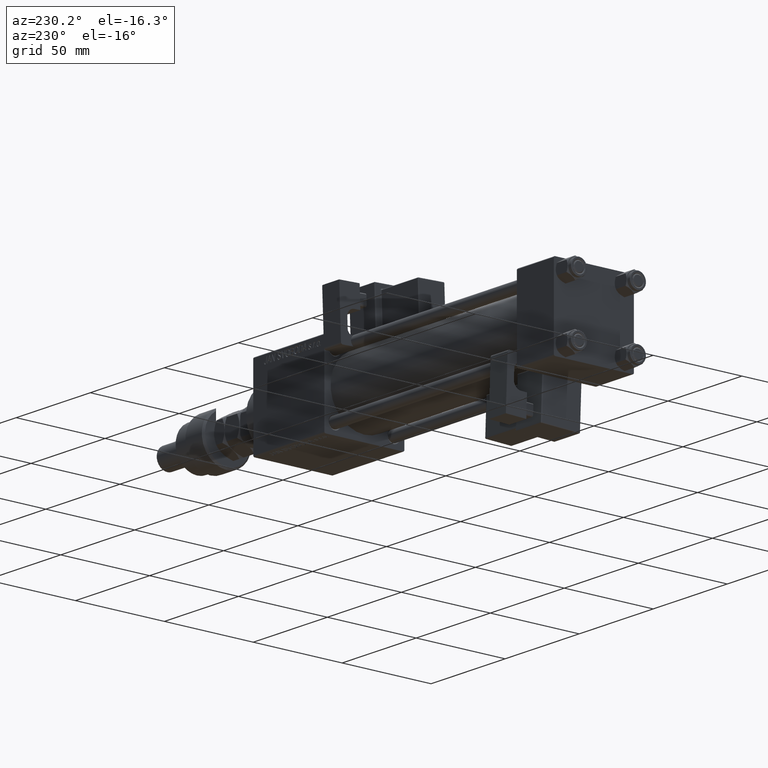
[diagram: clean part render]
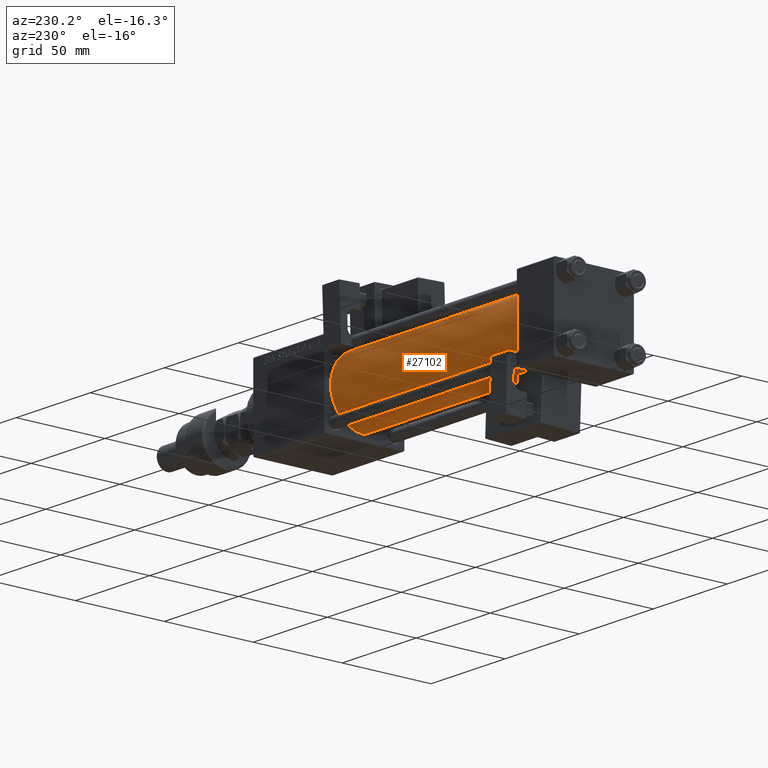
[diagram: same view with one face highlighted and labeled with its STEP entity id]
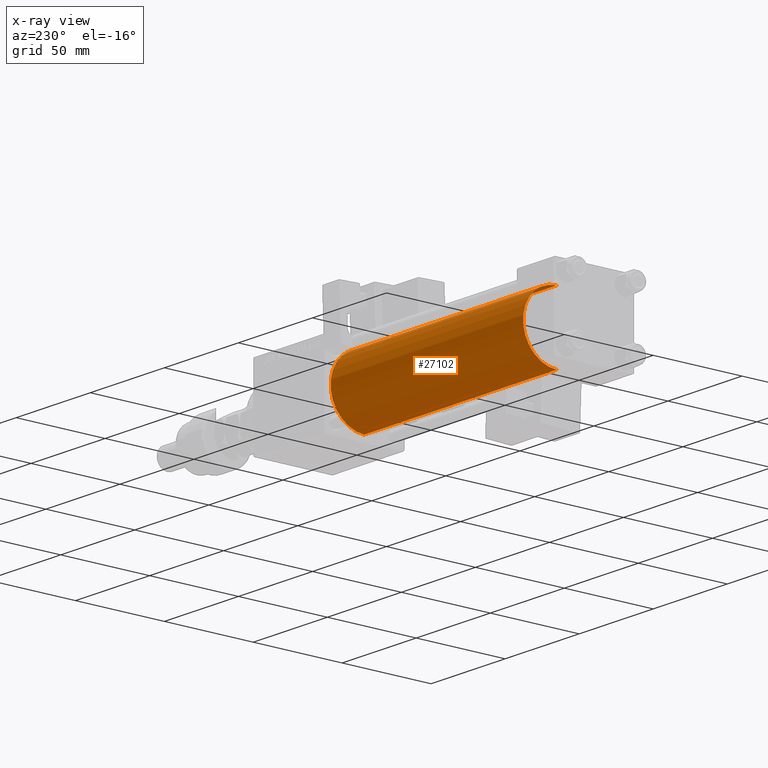
[diagram: x-ray of the same camera — body ghosted, the highlighted face saturated]
A machine part, auxiliary view. The second image highlights one B-rep face of the part: STEP entity #27102.
The next image is the same camera in x-ray: the body ghosted, the highlighted face saturated — about 0% of this face is hidden behind the body in this view.
In plain terms, the highlighted cylindrical surface (partial cylindrical patch) has radius 19 mm, axis along (-1, -0, -0).
Its self-contained STEP definition (entity closure, byte-faithful):
#1292 = AXIS2_PLACEMENT_3D ( 'NONE', #20231, #37016, #42064 ) ;
#1462 = CARTESIAN_POINT ( 'NONE',  ( 24.99999999999999289, -2.752562955852396712E-16, -19.00000000000000000 ) ) ;
#3622 = VERTEX_POINT ( 'NONE', #18823 ) ;
#4550 = EDGE_CURVE ( 'NONE', #3622, #45296, #43514, .T. ) ;
#4611 = AXIS2_PLACEMENT_3D ( 'NONE', #51790, #17618, #46761 ) ;
#6008 = CARTESIAN_POINT ( 'NONE',  ( 155.0000000000000000, -2.602085213965210642E-15, 19.00000000000000000 ) ) ;
#6885 = DIRECTION ( 'NONE',  ( 0.000000000000000000, 0.000000000000000000, 1.000000000000000000 ) ) ;
#8890 = VERTEX_POINT ( 'NONE', #6008 ) ;
#9734 = VECTOR ( 'NONE', #16925, 1000.000000000000000 ) ;
#10258 = EDGE_CURVE ( 'NONE', #3622, #8890, #34401, .T. ) ;
#11216 = ORIENTED_EDGE ( 'NONE', *, *, #16297, .T. ) ;
#12999 = ORIENTED_EDGE ( 'NONE', *, *, #10258, .F. ) ;
#13272 = CARTESIAN_POINT ( 'NONE',  ( 155.0000000000000000, -2.752562955852396712E-16, -19.00000000000000000 ) ) ;
#16297 = EDGE_CURVE ( 'NONE', #45296, #41250, #53475, .T. ) ;
#16925 = DIRECTION ( 'NONE',  ( -1.000000000000000000, -0.000000000000000000, -0.000000000000000000 ) ) ;
#17618 = DIRECTION ( 'NONE',  ( -1.000000000000000000, -0.000000000000000000, -0.000000000000000000 ) ) ;
#18297 = CARTESIAN_POINT ( 'NONE',  ( 24.99999999999999289, -2.602085213965210642E-15, 19.00000000000000000 ) ) ;
#18823 = CARTESIAN_POINT ( 'NONE',  ( 155.0000000000000000, -2.752562955852396712E-16, -19.00000000000000000 ) ) ;
#19516 = DIRECTION ( 'NONE',  ( 1.000000000000000000, -0.000000000000000000, 0.000000000000000000 ) ) ;
#20231 = CARTESIAN_POINT ( 'NONE',  ( 155.0000000000000000, -2.602085213965210642E-15, 0.000000000000000000 ) ) ;
#21833 = CYLINDRICAL_SURFACE ( 'NONE', #4611, 19.00000000000000000 ) ;
#26341 = EDGE_CURVE ( 'NONE', #8890, #41250, #36540, .T. ) ;
#27102 = ADVANCED_FACE ( 'NONE', ( #47855 ), #21833, .T. ) ;
#27228 = ORIENTED_EDGE ( 'NONE', *, *, #26341, .F. ) ;
#27594 = CARTESIAN_POINT ( 'NONE',  ( 155.0000000000000000, -2.602085213965210642E-15, 19.00000000000000000 ) ) ;
#28412 = DIRECTION ( 'NONE',  ( -1.000000000000000000, -0.000000000000000000, -0.000000000000000000 ) ) ;
#28464 = ORIENTED_EDGE ( 'NONE', *, *, #4550, .T. ) ;
#33156 = VECTOR ( 'NONE', #28412, 1000.000000000000000 ) ;
#33807 = AXIS2_PLACEMENT_3D ( 'NONE', #44725, #19516, #6885 ) ;
#34095 = EDGE_LOOP ( 'NONE', ( #12999, #28464, #11216, #27228 ) ) ;
#34401 = CIRCLE ( 'NONE', #1292, 19.00000000000000000 ) ;
#36540 = LINE ( 'NONE', #27594, #33156 ) ;
#37016 = DIRECTION ( 'NONE',  ( 1.000000000000000000, 0.000000000000000000, 0.000000000000000000 ) ) ;
#41250 = VERTEX_POINT ( 'NONE', #18297 ) ;
#42064 = DIRECTION ( 'NONE',  ( 0.000000000000000000, 0.000000000000000000, -1.000000000000000000 ) ) ;
#43514 = LINE ( 'NONE', #13272, #9734 ) ;
#44725 = CARTESIAN_POINT ( 'NONE',  ( 24.99999999999999289, -2.602085213965210642E-15, 0.000000000000000000 ) ) ;
#45296 = VERTEX_POINT ( 'NONE', #1462 ) ;
#46761 = DIRECTION ( 'NONE',  ( 0.000000000000000000, 0.000000000000000000, 1.000000000000000000 ) ) ;
#47855 = FACE_OUTER_BOUND ( 'NONE', #34095, .T. ) ;
#51790 = CARTESIAN_POINT ( 'NONE',  ( 155.0000000000000000, -2.602085213965210642E-15, 0.000000000000000000 ) ) ;
#53475 = CIRCLE ( 'NONE', #33807, 19.00000000000000000 ) ;